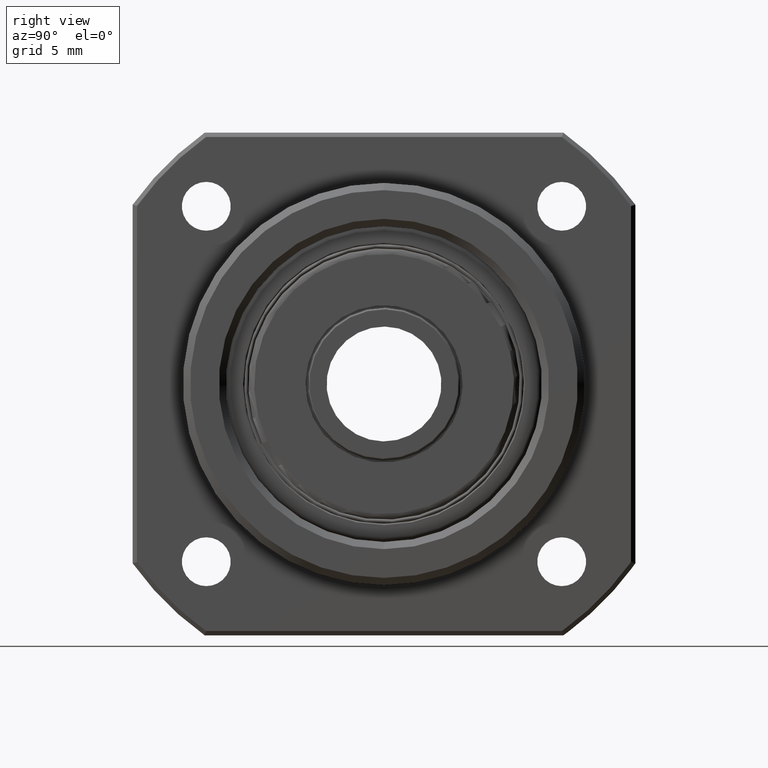
[diagram: clean part render]
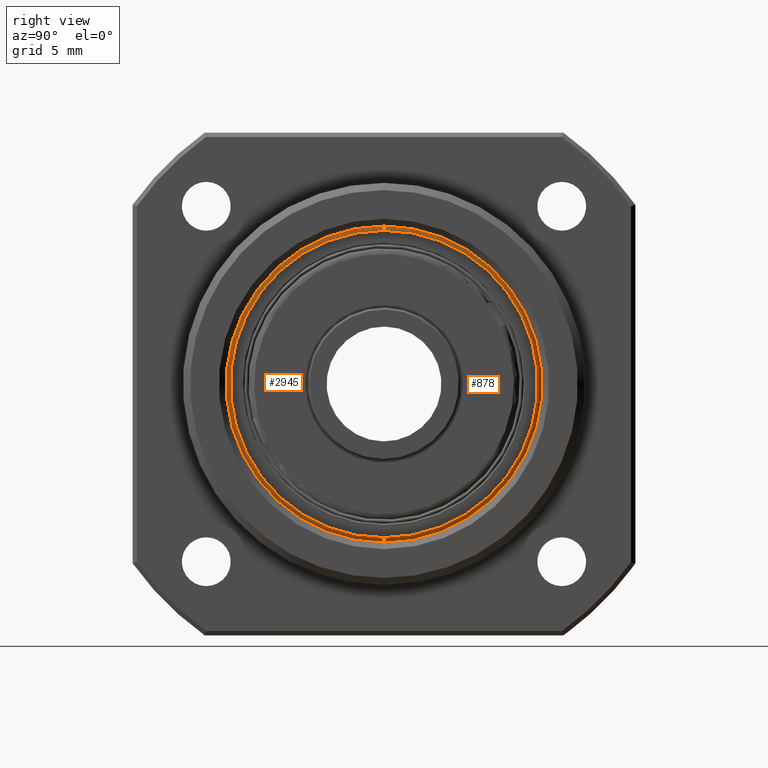
[diagram: same view with one multi-face feature highlighted, each face labeled with its STEP entity id]
A machine part, right view. The highlighted faces form ONE feature: a constant-radius fillet chain: 2 tangent blend faces with common blend radius 0.3 mm. The faces share edges in the B-rep.
Their STEP definitions:
[1] entity #878 (Torus):
#655 = ORIENTED_EDGE ( 'NONE', *, *, #656, .F. ) ;
#656 = EDGE_CURVE ( 'NONE', #657, #658, #1767, .T. ) ;
#657 = VERTEX_POINT ( 'NONE', #1762 ) ;
#658 = VERTEX_POINT ( 'NONE', #1761 ) ;
#659 = ORIENTED_EDGE ( 'NONE', *, *, #660, .T. ) ;
#660 = EDGE_CURVE ( 'NONE', #657, #661, #1760, .T. ) ;
#661 = VERTEX_POINT ( 'NONE', #1699 ) ;
#862 = ORIENTED_EDGE ( 'NONE', *, *, #863, .F. ) ;
#863 = EDGE_CURVE ( 'NONE', #864, #661, #1857, .T. ) ;
#864 = VERTEX_POINT ( 'NONE', #1848 ) ;
#865 = ORIENTED_EDGE ( 'NONE', *, *, #866, .F. ) ;
#866 = EDGE_CURVE ( 'NONE', #658, #864, #1847, .T. ) ;
#878 = ADVANCED_FACE ( 'NONE', ( #1888 ), #1887, .T. ) ;
#879 = EDGE_LOOP ( 'NONE', ( #655, #659, #862, #865 ) ) ;
#1699 = CARTESIAN_POINT ( 'NONE',  ( 9.199999999999994000, 1.347066989204615000E-015, -11.00000000000000000 ) ) ;
#1700 = DIRECTION ( 'NONE',  ( 0.0000000000000000000, -1.224606353822380200E-016, 1.000000000000000000 ) ) ;
#1701 = DIRECTION ( 'NONE',  ( -0.0000000000000000000, 1.000000000000000000, 1.224606353822377300E-016 ) ) ;
#1702 = CARTESIAN_POINT ( 'NONE',  ( 9.199999999999994000, 1.310328798589943600E-015, -10.69999999999999900 ) ) ;
#1703 = AXIS2_PLACEMENT_3D ( 'NONE', #1702, #1701, #1700 ) ;
#1760 = CIRCLE ( 'NONE', #1703, 0.2999999999999999300 ) ;
#1761 = CARTESIAN_POINT ( 'NONE',  ( 9.499999999999994700, 0.0000000000000000000, 10.69999999999999900 ) ) ;
#1762 = CARTESIAN_POINT ( 'NONE',  ( 9.499999999999994700, 1.328697893897279200E-015, -10.69999999999999900 ) ) ;
#1763 = DIRECTION ( 'NONE',  ( 0.0000000000000000000, 0.0000000000000000000, 1.000000000000000000 ) ) ;
#1764 = DIRECTION ( 'NONE',  ( 1.000000000000000000, 0.0000000000000000000, 0.0000000000000000000 ) ) ;
#1765 = CARTESIAN_POINT ( 'NONE',  ( 9.499999999999994700, 0.0000000000000000000, 0.0000000000000000000 ) ) ;
#1766 = AXIS2_PLACEMENT_3D ( 'NONE', #1765, #1764, #1763 ) ;
#1767 = CIRCLE ( 'NONE', #1766, 10.69999999999999900 ) ;
#1843 = DIRECTION ( 'NONE',  ( 0.0000000000000000000, 0.0000000000000000000, -1.000000000000000000 ) ) ;
#1844 = DIRECTION ( 'NONE',  ( 0.0000000000000000000, -1.000000000000000000, 0.0000000000000000000 ) ) ;
#1845 = CARTESIAN_POINT ( 'NONE',  ( 9.199999999999994000, 0.0000000000000000000, 10.69999999999999900 ) ) ;
#1846 = AXIS2_PLACEMENT_3D ( 'NONE', #1845, #1844, #1843 ) ;
#1847 = CIRCLE ( 'NONE', #1846, 0.2999999999999999300 ) ;
#1848 = CARTESIAN_POINT ( 'NONE',  ( 9.199999999999994000, 0.0000000000000000000, 11.00000000000000000 ) ) ;
#1849 = DIRECTION ( 'NONE',  ( 0.0000000000000000000, 0.0000000000000000000, 1.000000000000000000 ) ) ;
#1850 = DIRECTION ( 'NONE',  ( -1.000000000000000000, -0.0000000000000000000, -0.0000000000000000000 ) ) ;
#1851 = CARTESIAN_POINT ( 'NONE',  ( 9.199999999999994000, 0.0000000000000000000, 0.0000000000000000000 ) ) ;
#1852 = AXIS2_PLACEMENT_3D ( 'NONE', #1851, #1850, #1849 ) ;
#1857 = CIRCLE ( 'NONE', #1852, 11.00000000000000000 ) ;
#1882 = DIRECTION ( 'NONE',  ( 0.0000000000000000000, 0.0000000000000000000, 1.000000000000000000 ) ) ;
#1883 = DIRECTION ( 'NONE',  ( -1.000000000000000000, -0.0000000000000000000, -0.0000000000000000000 ) ) ;
#1884 = CARTESIAN_POINT ( 'NONE',  ( 9.199999999999994000, 0.0000000000000000000, 0.0000000000000000000 ) ) ;
#1885 = AXIS2_PLACEMENT_3D ( 'NONE', #1884, #1883, #1882 ) ;
#1887 = TOROIDAL_SURFACE ( 'NONE', #1885, 10.69999999999999900, 0.2999999999999999900 ) ;
#1888 = FACE_OUTER_BOUND ( 'NONE', #879, .T. ) ;
[2] entity #2945 (Torus):
#657 = VERTEX_POINT ( 'NONE', #1762 ) ;
#658 = VERTEX_POINT ( 'NONE', #1761 ) ;
#660 = EDGE_CURVE ( 'NONE', #657, #661, #1760, .T. ) ;
#661 = VERTEX_POINT ( 'NONE', #1699 ) ;
#864 = VERTEX_POINT ( 'NONE', #1848 ) ;
#866 = EDGE_CURVE ( 'NONE', #658, #864, #1847, .T. ) ;
#1535 = EDGE_CURVE ( 'NONE', #658, #657, #2108, .T. ) ;
#1699 = CARTESIAN_POINT ( 'NONE',  ( 9.199999999999994000, 1.347066989204615000E-015, -11.00000000000000000 ) ) ;
#1700 = DIRECTION ( 'NONE',  ( 0.0000000000000000000, -1.224606353822380200E-016, 1.000000000000000000 ) ) ;
#1701 = DIRECTION ( 'NONE',  ( -0.0000000000000000000, 1.000000000000000000, 1.224606353822377300E-016 ) ) ;
#1702 = CARTESIAN_POINT ( 'NONE',  ( 9.199999999999994000, 1.310328798589943600E-015, -10.69999999999999900 ) ) ;
#1703 = AXIS2_PLACEMENT_3D ( 'NONE', #1702, #1701, #1700 ) ;
#1760 = CIRCLE ( 'NONE', #1703, 0.2999999999999999300 ) ;
#1761 = CARTESIAN_POINT ( 'NONE',  ( 9.499999999999994700, 0.0000000000000000000, 10.69999999999999900 ) ) ;
#1762 = CARTESIAN_POINT ( 'NONE',  ( 9.499999999999994700, 1.328697893897279200E-015, -10.69999999999999900 ) ) ;
#1843 = DIRECTION ( 'NONE',  ( 0.0000000000000000000, 0.0000000000000000000, -1.000000000000000000 ) ) ;
#1844 = DIRECTION ( 'NONE',  ( 0.0000000000000000000, -1.000000000000000000, 0.0000000000000000000 ) ) ;
#1845 = CARTESIAN_POINT ( 'NONE',  ( 9.199999999999994000, 0.0000000000000000000, 10.69999999999999900 ) ) ;
#1846 = AXIS2_PLACEMENT_3D ( 'NONE', #1845, #1844, #1843 ) ;
#1847 = CIRCLE ( 'NONE', #1846, 0.2999999999999999300 ) ;
#1848 = CARTESIAN_POINT ( 'NONE',  ( 9.199999999999994000, 0.0000000000000000000, 11.00000000000000000 ) ) ;
#2104 = DIRECTION ( 'NONE',  ( 0.0000000000000000000, 0.0000000000000000000, 1.000000000000000000 ) ) ;
#2105 = DIRECTION ( 'NONE',  ( 1.000000000000000000, 0.0000000000000000000, 0.0000000000000000000 ) ) ;
#2106 = CARTESIAN_POINT ( 'NONE',  ( 9.499999999999994700, 0.0000000000000000000, 0.0000000000000000000 ) ) ;
#2107 = AXIS2_PLACEMENT_3D ( 'NONE', #2106, #2105, #2104 ) ;
#2108 = CIRCLE ( 'NONE', #2107, 10.69999999999999900 ) ;
#2481 = DIRECTION ( 'NONE',  ( 0.0000000000000000000, 0.0000000000000000000, 1.000000000000000000 ) ) ;
#2482 = DIRECTION ( 'NONE',  ( -1.000000000000000000, -0.0000000000000000000, -0.0000000000000000000 ) ) ;
#2483 = CARTESIAN_POINT ( 'NONE',  ( 9.199999999999994000, 0.0000000000000000000, 0.0000000000000000000 ) ) ;
#2484 = AXIS2_PLACEMENT_3D ( 'NONE', #2483, #2482, #2481 ) ;
#2486 = TOROIDAL_SURFACE ( 'NONE', #2484, 10.69999999999999900, 0.2999999999999999900 ) ;
#2487 = FACE_OUTER_BOUND ( 'NONE', #2946, .T. ) ;
#2642 = DIRECTION ( 'NONE',  ( 0.0000000000000000000, 0.0000000000000000000, 1.000000000000000000 ) ) ;
#2644 = DIRECTION ( 'NONE',  ( -1.000000000000000000, -0.0000000000000000000, -0.0000000000000000000 ) ) ;
#2646 = CARTESIAN_POINT ( 'NONE',  ( 9.199999999999994000, 0.0000000000000000000, 0.0000000000000000000 ) ) ;
#2647 = AXIS2_PLACEMENT_3D ( 'NONE', #2646, #2644, #2642 ) ;
#2648 = CIRCLE ( 'NONE', #2647, 11.00000000000000000 ) ;
#2802 = ORIENTED_EDGE ( 'NONE', *, *, #2936, .F. ) ;
#2936 = EDGE_CURVE ( 'NONE', #661, #864, #2648, .T. ) ;
#2945 = ADVANCED_FACE ( 'NONE', ( #2487 ), #2486, .T. ) ;
#2946 = EDGE_LOOP ( 'NONE', ( #3033, #3035, #3036, #2802 ) ) ;
#3033 = ORIENTED_EDGE ( 'NONE', *, *, #660, .F. ) ;
#3035 = ORIENTED_EDGE ( 'NONE', *, *, #1535, .F. ) ;
#3036 = ORIENTED_EDGE ( 'NONE', *, *, #866, .T. ) ;